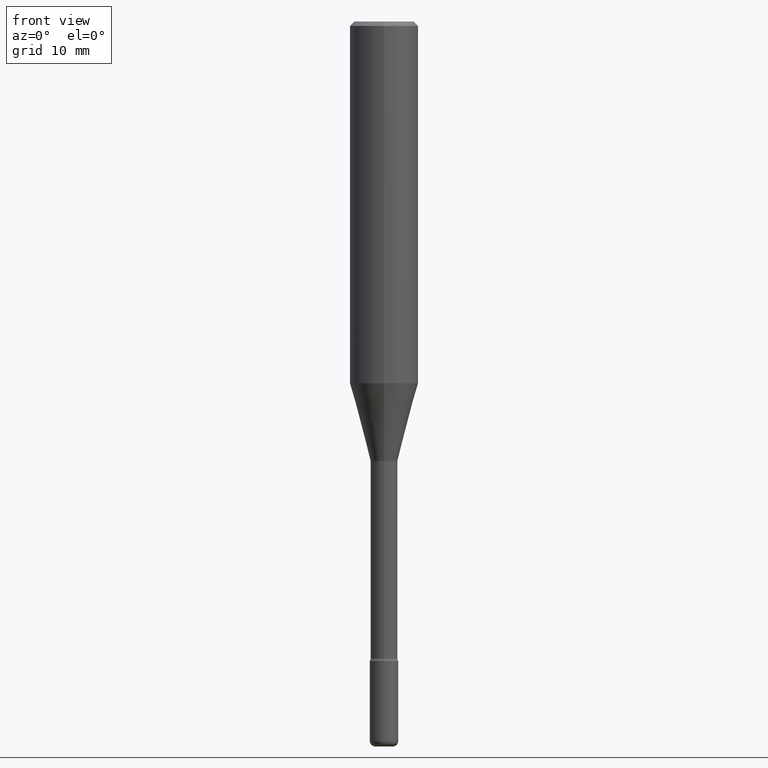
[diagram: clean part render]
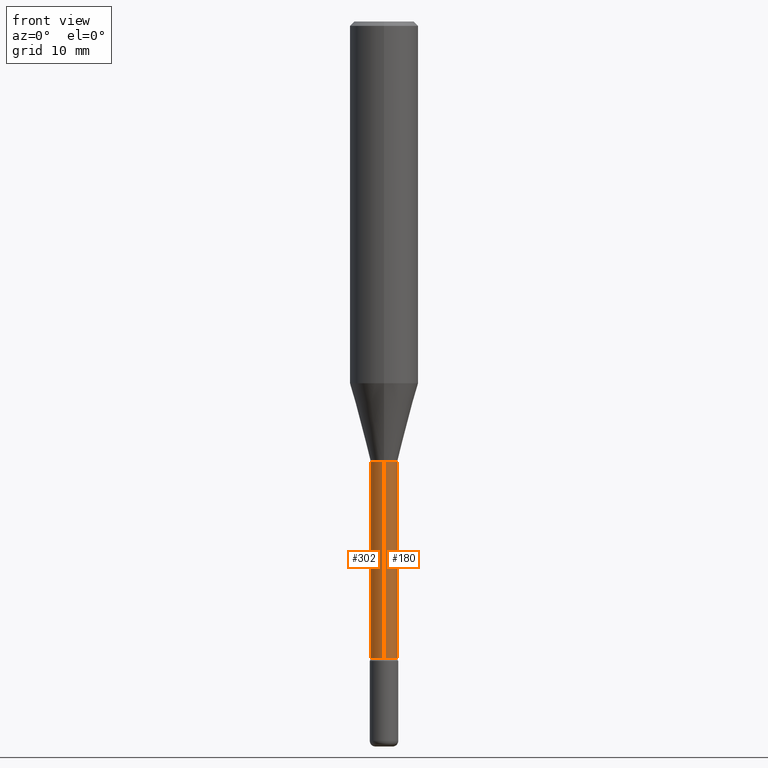
[diagram: same view with one multi-face feature highlighted, each face labeled with its STEP entity id]
A machine part, front view. The highlighted faces form ONE feature: a constant-radius fillet chain: 2 tangent blend faces with common blend radius 1.1748 mm. The faces share edges in the B-rep.
Their STEP definitions:
[1] entity #302 (Cylinder):
#40 = EDGE_CURVE ( 'NONE', #192, #410, #59, .T. ) ;
#52 = CARTESIAN_POINT ( 'NONE',  ( -3.229620238429526702E-16, -0.04625000000000530076, -1.517674787463811015 ) ) ;
#57 = ORIENTED_EDGE ( 'NONE', *, *, #40, .T. ) ;
#59 = CIRCLE ( 'NONE', #84, 0.04625000000000006883 ) ;
#60 = CARTESIAN_POINT ( 'NONE',  ( 5.370233789924947093E-29, -7.665686409721247305E-15, -2.195767055356714792 ) ) ;
#71 = EDGE_LOOP ( 'NONE', ( #352, #57, #420, #178 ) ) ;
#74 = DIRECTION ( 'NONE',  ( -2.445721087227316555E-29, 3.491120058031798950E-15, 1.000000000000000000 ) ) ;
#84 = AXIS2_PLACEMENT_3D ( 'NONE', #60, #74, #422 ) ;
#85 = EDGE_CURVE ( 'NONE', #150, #436, #373, .T. ) ;
#105 = DIRECTION ( 'NONE',  ( -6.982962677686265922E-15, -1.000000000000000000, 5.906698364679487997E-15 ) ) ;
#108 = DIRECTION ( 'NONE',  ( -2.445721087227316555E-29, 3.491120058031798950E-15, 1.000000000000000000 ) ) ;
#116 = CARTESIAN_POINT ( 'NONE',  ( 3.391065206415618758E-16, 0.04624999999999240136, -2.195767055356715236 ) ) ;
#123 = FACE_OUTER_BOUND ( 'NONE', #71, .T. ) ;
#150 = VERTEX_POINT ( 'NONE', #551 ) ;
#172 = LINE ( 'NONE', #429, #433 ) ;
#178 = ORIENTED_EDGE ( 'NONE', *, *, #85, .F. ) ;
#192 = VERTEX_POINT ( 'NONE', #116 ) ;
#246 = CARTESIAN_POINT ( 'NONE',  ( 3.711809231253478318E-29, -5.298384892084059115E-15, -1.517674787463811237 ) ) ;
#254 = AXIS2_PLACEMENT_3D ( 'NONE', #338, #260, #568 ) ;
#257 = EDGE_CURVE ( 'NONE', #410, #436, #387, .T. ) ;
#260 = DIRECTION ( 'NONE',  ( -2.445721087227316555E-29, 3.491120058031798950E-15, 1.000000000000000000 ) ) ;
#289 = EDGE_CURVE ( 'NONE', #192, #150, #172, .T. ) ;
#302 = ADVANCED_FACE ( 'NONE', ( #123 ), #474, .T. ) ;
#338 = CARTESIAN_POINT ( 'NONE',  ( -1.169113584055446105E-44, 1.669184350826100908E-30, 4.780733988912460139E-16 ) ) ;
#352 = ORIENTED_EDGE ( 'NONE', *, *, #289, .F. ) ;
#353 = CARTESIAN_POINT ( 'NONE',  ( -3.229620238429365971E-16, -0.04625000000000773631, -2.195767055356714348 ) ) ;
#373 = CIRCLE ( 'NONE', #431, 0.04624999999999999944 ) ;
#383 = CARTESIAN_POINT ( 'NONE',  ( -3.229620238429900424E-16, -0.04625000000000003414, 6.395377015752169353E-16 ) ) ;
#387 = LINE ( 'NONE', #383, #466 ) ;
#410 = VERTEX_POINT ( 'NONE', #353 ) ;
#420 = ORIENTED_EDGE ( 'NONE', *, *, #257, .T. ) ;
#422 = DIRECTION ( 'NONE',  ( -6.982962677686265922E-15, -1.000000000000000000, 5.906698364679479320E-15 ) ) ;
#429 = CARTESIAN_POINT ( 'NONE',  ( 3.286260152890465292E-16, 0.04625000000000003414, 3.166090962072752405E-16 ) ) ;
#431 = AXIS2_PLACEMENT_3D ( 'NONE', #246, #108, #105 ) ;
#432 = DIRECTION ( 'NONE',  ( -2.445721087227316555E-29, 3.491120058031798950E-15, 1.000000000000000000 ) ) ;
#433 = VECTOR ( 'NONE', #519, 39.37007874015748143 ) ;
#436 = VERTEX_POINT ( 'NONE', #52 ) ;
#466 = VECTOR ( 'NONE', #432, 39.37007874015748143 ) ;
#474 = CYLINDRICAL_SURFACE ( 'NONE', #254, 0.04625000000000003414 ) ;
#519 = DIRECTION ( 'NONE',  ( -2.445721087227316555E-29, 3.491120058031798950E-15, 1.000000000000000000 ) ) ;
#551 = CARTESIAN_POINT ( 'NONE',  ( 3.286260152891002704E-16, 0.04624999999999469813, -1.517674787463811459 ) ) ;
#568 = DIRECTION ( 'NONE',  ( -6.982962677686265922E-15, -1.000000000000000000, 3.491120058031800528E-15 ) ) ;
[2] entity #180 (Cylinder):
#1 = DIRECTION ( 'NONE',  ( -6.982962677686265922E-15, -1.000000000000000000, 5.906698364679487997E-15 ) ) ;
#19 = EDGE_LOOP ( 'NONE', ( #173, #452, #394, #271 ) ) ;
#52 = CARTESIAN_POINT ( 'NONE',  ( -3.229620238429526702E-16, -0.04625000000000530076, -1.517674787463811015 ) ) ;
#116 = CARTESIAN_POINT ( 'NONE',  ( 3.391065206415618758E-16, 0.04624999999999240136, -2.195767055356715236 ) ) ;
#150 = VERTEX_POINT ( 'NONE', #551 ) ;
#158 = DIRECTION ( 'NONE',  ( -2.445721087227316555E-29, 3.491120058031798950E-15, 1.000000000000000000 ) ) ;
#172 = LINE ( 'NONE', #429, #433 ) ;
#173 = ORIENTED_EDGE ( 'NONE', *, *, #501, .T. ) ;
#180 = ADVANCED_FACE ( 'NONE', ( #199 ), #372, .T. ) ;
#192 = VERTEX_POINT ( 'NONE', #116 ) ;
#199 = FACE_OUTER_BOUND ( 'NONE', #19, .T. ) ;
#227 = CARTESIAN_POINT ( 'NONE',  ( 5.370233789924947093E-29, -7.665686409721247305E-15, -2.195767055356714792 ) ) ;
#257 = EDGE_CURVE ( 'NONE', #410, #436, #387, .T. ) ;
#271 = ORIENTED_EDGE ( 'NONE', *, *, #257, .F. ) ;
#272 = DIRECTION ( 'NONE',  ( -2.445721087227316555E-29, 3.491120058031798950E-15, 1.000000000000000000 ) ) ;
#289 = EDGE_CURVE ( 'NONE', #192, #150, #172, .T. ) ;
#299 = AXIS2_PLACEMENT_3D ( 'NONE', #227, #356, #317 ) ;
#315 = CIRCLE ( 'NONE', #386, 0.04624999999999999944 ) ;
#317 = DIRECTION ( 'NONE',  ( -6.982962677686265922E-15, -1.000000000000000000, 5.906698364679479320E-15 ) ) ;
#332 = DIRECTION ( 'NONE',  ( -6.982962677686265922E-15, -1.000000000000000000, 3.491120058031800528E-15 ) ) ;
#353 = CARTESIAN_POINT ( 'NONE',  ( -3.229620238429365971E-16, -0.04625000000000773631, -2.195767055356714348 ) ) ;
#356 = DIRECTION ( 'NONE',  ( -2.445721087227316555E-29, 3.491120058031798950E-15, 1.000000000000000000 ) ) ;
#372 = CYLINDRICAL_SURFACE ( 'NONE', #550, 0.04625000000000003414 ) ;
#383 = CARTESIAN_POINT ( 'NONE',  ( -3.229620238429900424E-16, -0.04625000000000003414, 6.395377015752169353E-16 ) ) ;
#386 = AXIS2_PLACEMENT_3D ( 'NONE', #531, #272, #1 ) ;
#387 = LINE ( 'NONE', #383, #466 ) ;
#394 = ORIENTED_EDGE ( 'NONE', *, *, #485, .F. ) ;
#410 = VERTEX_POINT ( 'NONE', #353 ) ;
#429 = CARTESIAN_POINT ( 'NONE',  ( 3.286260152890465292E-16, 0.04625000000000003414, 3.166090962072752405E-16 ) ) ;
#432 = DIRECTION ( 'NONE',  ( -2.445721087227316555E-29, 3.491120058031798950E-15, 1.000000000000000000 ) ) ;
#433 = VECTOR ( 'NONE', #519, 39.37007874015748143 ) ;
#436 = VERTEX_POINT ( 'NONE', #52 ) ;
#452 = ORIENTED_EDGE ( 'NONE', *, *, #289, .T. ) ;
#466 = VECTOR ( 'NONE', #432, 39.37007874015748143 ) ;
#485 = EDGE_CURVE ( 'NONE', #436, #150, #315, .T. ) ;
#501 = EDGE_CURVE ( 'NONE', #410, #192, #561, .T. ) ;
#519 = DIRECTION ( 'NONE',  ( -2.445721087227316555E-29, 3.491120058031798950E-15, 1.000000000000000000 ) ) ;
#531 = CARTESIAN_POINT ( 'NONE',  ( 3.711809231253478318E-29, -5.298384892084059115E-15, -1.517674787463811237 ) ) ;
#550 = AXIS2_PLACEMENT_3D ( 'NONE', #559, #158, #332 ) ;
#551 = CARTESIAN_POINT ( 'NONE',  ( 3.286260152891002704E-16, 0.04624999999999469813, -1.517674787463811459 ) ) ;
#559 = CARTESIAN_POINT ( 'NONE',  ( -1.169113584055446105E-44, 1.669184350826100908E-30, 4.780733988912460139E-16 ) ) ;
#561 = CIRCLE ( 'NONE', #299, 0.04625000000000006883 ) ;